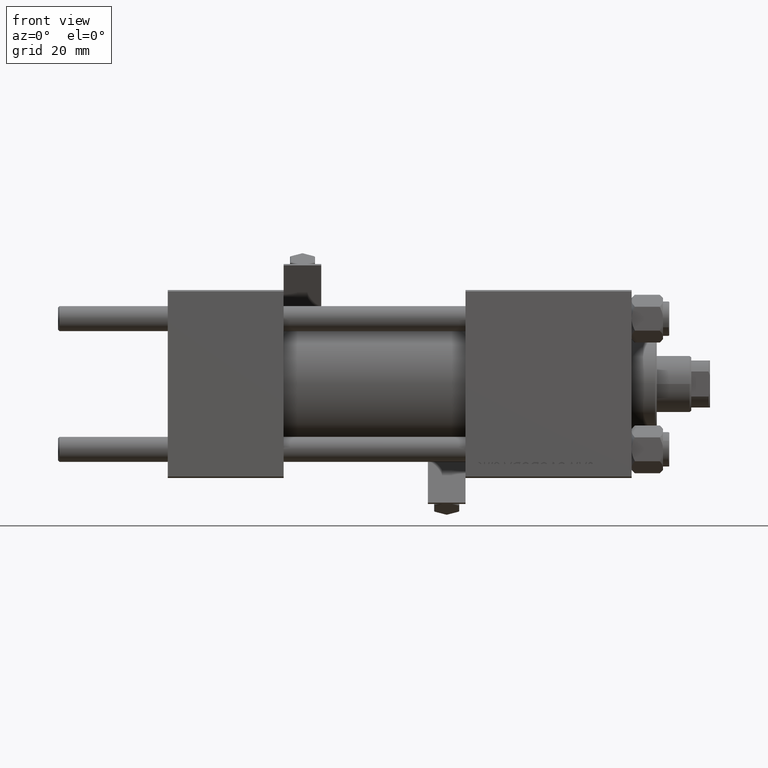
[diagram: clean part render]
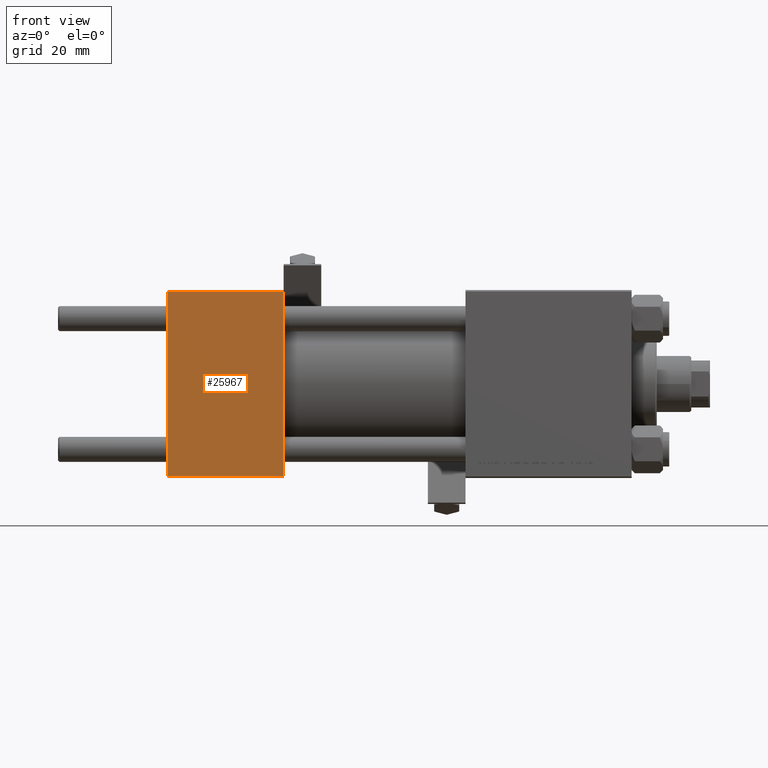
[diagram: same view with one face highlighted and labeled with its STEP entity id]
A machine part, front view. The second image highlights one B-rep face of the part: STEP entity #25967.
In plain terms, the highlighted planar face has unit normal (0, 1, 0).
Its self-contained STEP definition (entity closure, byte-faithful):
#3360 = LINE ( 'NONE', #4388, #44218 ) ;
#4388 = CARTESIAN_POINT ( 'NONE',  ( 37.00000000000000000, -30.00000000000000000, -29.50000000000001776 ) ) ;
#5851 = PLANE ( 'NONE',  #30839 ) ;
#7300 = VECTOR ( 'NONE', #34117, 1000.000000000000000 ) ;
#9520 = ORIENTED_EDGE ( 'NONE', *, *, #36739, .T. ) ;
#9804 = ORIENTED_EDGE ( 'NONE', *, *, #45810, .F. ) ;
#10705 = LINE ( 'NONE', #50605, #7300 ) ;
#12765 = DIRECTION ( 'NONE',  ( 0.000000000000000000, 0.000000000000000000, -1.000000000000000000 ) ) ;
#15307 = CARTESIAN_POINT ( 'NONE',  ( 0.000000000000000000, -30.00000000000000000, -29.50000000000001776 ) ) ;
#17188 = FACE_OUTER_BOUND ( 'NONE', #41788, .T. ) ;
#19350 = VERTEX_POINT ( 'NONE', #50561 ) ;
#19791 = DIRECTION ( 'NONE',  ( 0.000000000000000000, 0.000000000000000000, -1.000000000000000000 ) ) ;
#20038 = CARTESIAN_POINT ( 'NONE',  ( 0.000000000000000000, -30.00000000000000000, 29.99999999999999289 ) ) ;
#20510 = LINE ( 'NONE', #33099, #32881 ) ;
#22234 = VERTEX_POINT ( 'NONE', #38266 ) ;
#25876 = ORIENTED_EDGE ( 'NONE', *, *, #42858, .T. ) ;
#25967 = ADVANCED_FACE ( 'NONE', ( #17188 ), #5851, .F. ) ;
#28779 = CARTESIAN_POINT ( 'NONE',  ( 37.00000000000000000, -30.00000000000000000, 29.99999999999999289 ) ) ;
#30503 = VECTOR ( 'NONE', #19791, 1000.000000000000000 ) ;
#30839 = AXIS2_PLACEMENT_3D ( 'NONE', #28779, #49105, #44480 ) ;
#32881 = VECTOR ( 'NONE', #12765, 1000.000000000000000 ) ;
#33099 = CARTESIAN_POINT ( 'NONE',  ( 37.00000000000000000, -30.00000000000000000, 29.99999999999999289 ) ) ;
#34117 = DIRECTION ( 'NONE',  ( -1.000000000000000000, 0.000000000000000000, 0.000000000000000000 ) ) ;
#36739 = EDGE_CURVE ( 'NONE', #46023, #22234, #3360, .T. ) ;
#38266 = CARTESIAN_POINT ( 'NONE',  ( 37.00000000000000000, -30.00000000000000000, -29.50000000000001776 ) ) ;
#39343 = LINE ( 'NONE', #20038, #30503 ) ;
#39499 = ORIENTED_EDGE ( 'NONE', *, *, #47981, .T. ) ;
#41788 = EDGE_LOOP ( 'NONE', ( #39499, #9520, #9804, #25876 ) ) ;
#42742 = DIRECTION ( 'NONE',  ( 1.000000000000000000, 0.000000000000000000, 0.000000000000000000 ) ) ;
#42858 = EDGE_CURVE ( 'NONE', #49682, #19350, #10705, .T. ) ;
#43214 = CARTESIAN_POINT ( 'NONE',  ( 37.00000000000000000, -30.00000000000000000, 29.49999999999999289 ) ) ;
#44218 = VECTOR ( 'NONE', #42742, 1000.000000000000000 ) ;
#44480 = DIRECTION ( 'NONE',  ( 0.000000000000000000, -0.000000000000000000, 1.000000000000000000 ) ) ;
#45810 = EDGE_CURVE ( 'NONE', #49682, #22234, #20510, .T. ) ;
#46023 = VERTEX_POINT ( 'NONE', #15307 ) ;
#47981 = EDGE_CURVE ( 'NONE', #19350, #46023, #39343, .T. ) ;
#49105 = DIRECTION ( 'NONE',  ( -0.000000000000000000, 1.000000000000000000, 0.000000000000000000 ) ) ;
#49682 = VERTEX_POINT ( 'NONE', #43214 ) ;
#50561 = CARTESIAN_POINT ( 'NONE',  ( 0.000000000000000000, -30.00000000000000000, 29.49999999999999289 ) ) ;
#50605 = CARTESIAN_POINT ( 'NONE',  ( 37.00000000000000000, -30.00000000000000000, 29.49999999999999289 ) ) ;